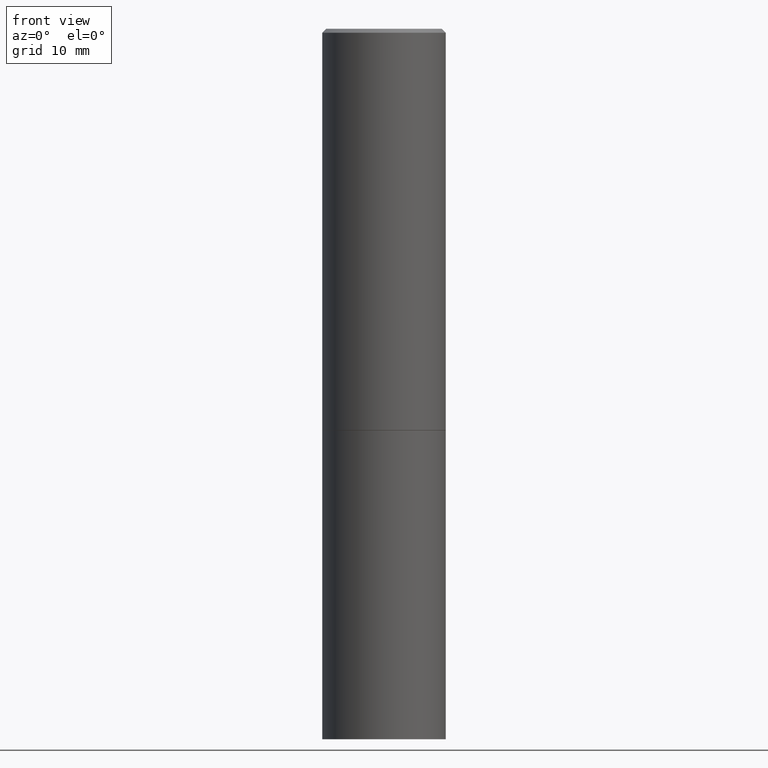
[diagram: clean part render]
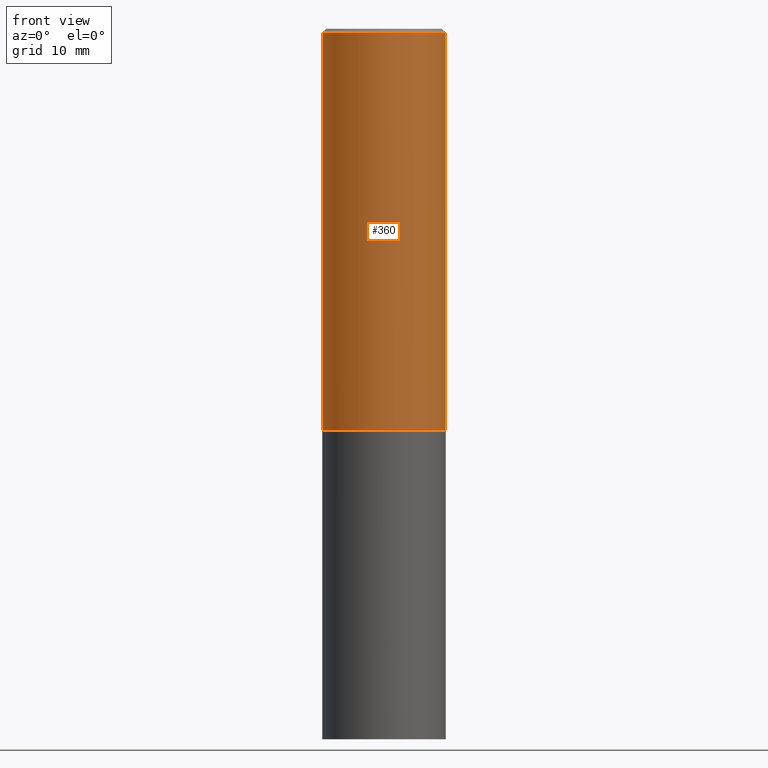
[diagram: same view with one face highlighted and labeled with its STEP entity id]
A machine part, front view. The second image highlights one B-rep face of the part: STEP entity #360.
In plain terms, the highlighted cylindrical surface (partial cylindrical patch) has radius 7.9997 mm, axis along (-0, 0, 1).
Its self-contained STEP definition (entity closure, byte-faithful):
#2 = EDGE_CURVE ( 'NONE', #282, #135, #363, .T. ) ;
#19 = VERTEX_POINT ( 'NONE', #292 ) ;
#22 = CARTESIAN_POINT ( 'NONE',  ( 0.3149500000000000077, -9.343553210878133488E-15, -2.046199999999999797 ) ) ;
#30 = DIRECTION ( 'NONE',  ( -2.445468806185136597E-29, 3.491481338843145583E-15, 1.000000000000000000 ) ) ;
#42 = CARTESIAN_POINT ( 'NONE',  ( 5.003918271216025517E-29, -7.144269115540843617E-15, -2.046199999999999797 ) ) ;
#60 = CARTESIAN_POINT ( 'NONE',  ( 0.000000000000000000, 0.000000000000000000, 0.000000000000000000 ) ) ;
#77 = CARTESIAN_POINT ( 'NONE',  ( -0.3149499999999997302, 2.129454468560424601E-15, -0.02000000000000006981 ) ) ;
#85 = FACE_OUTER_BOUND ( 'NONE', #340, .T. ) ;
#88 = CYLINDRICAL_SURFACE ( 'NONE', #351, 0.3149499999999998967 ) ;
#98 = DIRECTION ( 'NONE',  ( -2.445468806185136877E-29, 3.491481338843145188E-15, 1.000000000000000000 ) ) ;
#100 = DIRECTION ( 'NONE',  ( -2.445468806185136877E-29, 3.491481338843145188E-15, 1.000000000000000000 ) ) ;
#112 = DIRECTION ( 'NONE',  ( 1.000000000000000000, -6.982962677686266711E-15, 0.000000000000000000 ) ) ;
#135 = VERTEX_POINT ( 'NONE', #155 ) ;
#142 = VECTOR ( 'NONE', #98, 39.37007874015748143 ) ;
#155 = CARTESIAN_POINT ( 'NONE',  ( 0.3149499999999997302, -2.230543471175005478E-15, -0.02000000000000006981 ) ) ;
#189 = AXIS2_PLACEMENT_3D ( 'NONE', #42, #221, #279 ) ;
#199 = VERTEX_POINT ( 'NONE', #22 ) ;
#207 = DIRECTION ( 'NONE',  ( 1.000000000000000000, -6.982962677686265922E-15, 4.876176775795935232E-29 ) ) ;
#218 = CARTESIAN_POINT ( 'NONE',  ( -0.3149499999999998967, 2.237854346276434801E-15, -1.549218606675782116E-29 ) ) ;
#221 = DIRECTION ( 'NONE',  ( -2.445468806185136597E-29, 3.491481338843145583E-15, 1.000000000000000000 ) ) ;
#227 = CARTESIAN_POINT ( 'NONE',  ( 0.3149499999999998967, -2.199284095337288688E-15, 1.535751875536929289E-29 ) ) ;
#232 = AXIS2_PLACEMENT_3D ( 'NONE', #280, #258, #112 ) ;
#243 = EDGE_CURVE ( 'NONE', #19, #282, #281, .T. ) ;
#258 = DIRECTION ( 'NONE',  ( -2.445468806185136597E-29, 3.491481338843145583E-15, 1.000000000000000000 ) ) ;
#279 = DIRECTION ( 'NONE',  ( 1.000000000000000000, -6.982962677686266711E-15, 0.000000000000000000 ) ) ;
#280 = CARTESIAN_POINT ( 'NONE',  ( 4.890937612370289799E-31, -6.982962677686315028E-17, -0.02000000000000006981 ) ) ;
#281 = LINE ( 'NONE', #218, #342 ) ;
#282 = VERTEX_POINT ( 'NONE', #77 ) ;
#292 = CARTESIAN_POINT ( 'NONE',  ( -0.3149500000000000077, -1.369195024882416092E-15, -2.046199999999999797 ) ) ;
#298 = EDGE_CURVE ( 'NONE', #199, #135, #365, .T. ) ;
#313 = ORIENTED_EDGE ( 'NONE', *, *, #243, .F. ) ;
#314 = EDGE_CURVE ( 'NONE', #19, #199, #348, .T. ) ;
#332 = ORIENTED_EDGE ( 'NONE', *, *, #314, .T. ) ;
#340 = EDGE_LOOP ( 'NONE', ( #313, #332, #362, #354 ) ) ;
#342 = VECTOR ( 'NONE', #100, 39.37007874015748143 ) ;
#348 = CIRCLE ( 'NONE', #189, 0.3149500000000000077 ) ;
#351 = AXIS2_PLACEMENT_3D ( 'NONE', #60, #30, #207 ) ;
#354 = ORIENTED_EDGE ( 'NONE', *, *, #2, .F. ) ;
#360 = ADVANCED_FACE ( 'NONE', ( #85 ), #88, .T. ) ;
#362 = ORIENTED_EDGE ( 'NONE', *, *, #298, .T. ) ;
#363 = CIRCLE ( 'NONE', #232, 0.3149499999999997302 ) ;
#365 = LINE ( 'NONE', #227, #142 ) ;